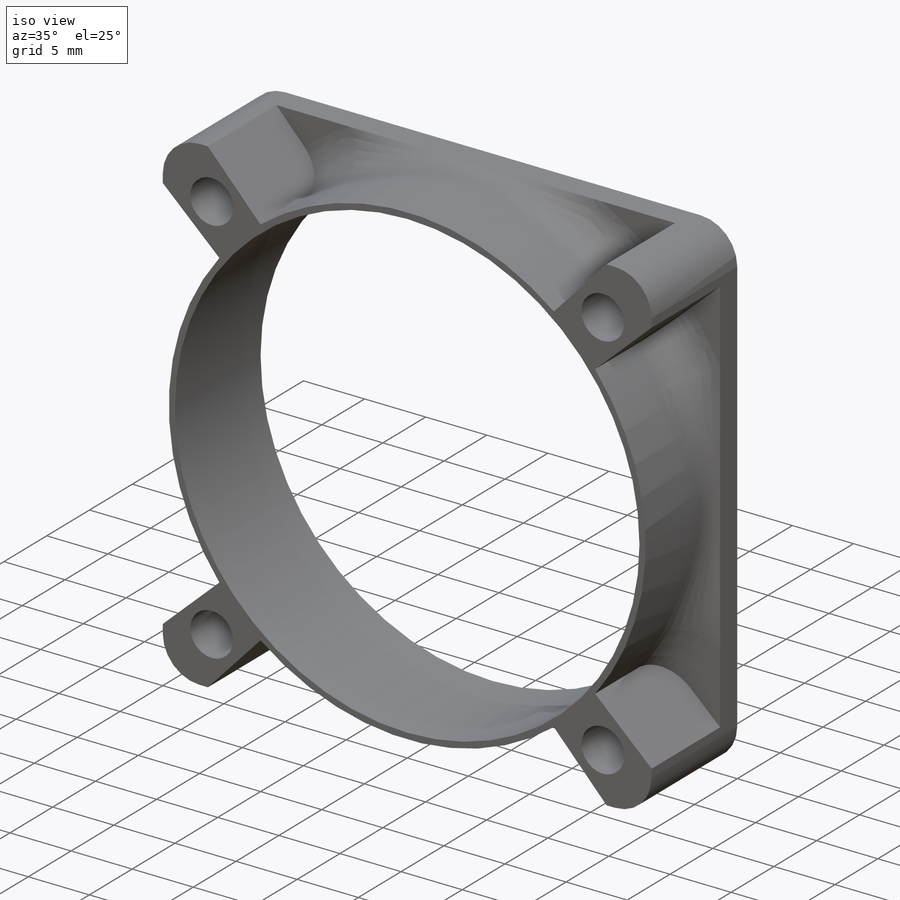
[diagram: iso view]
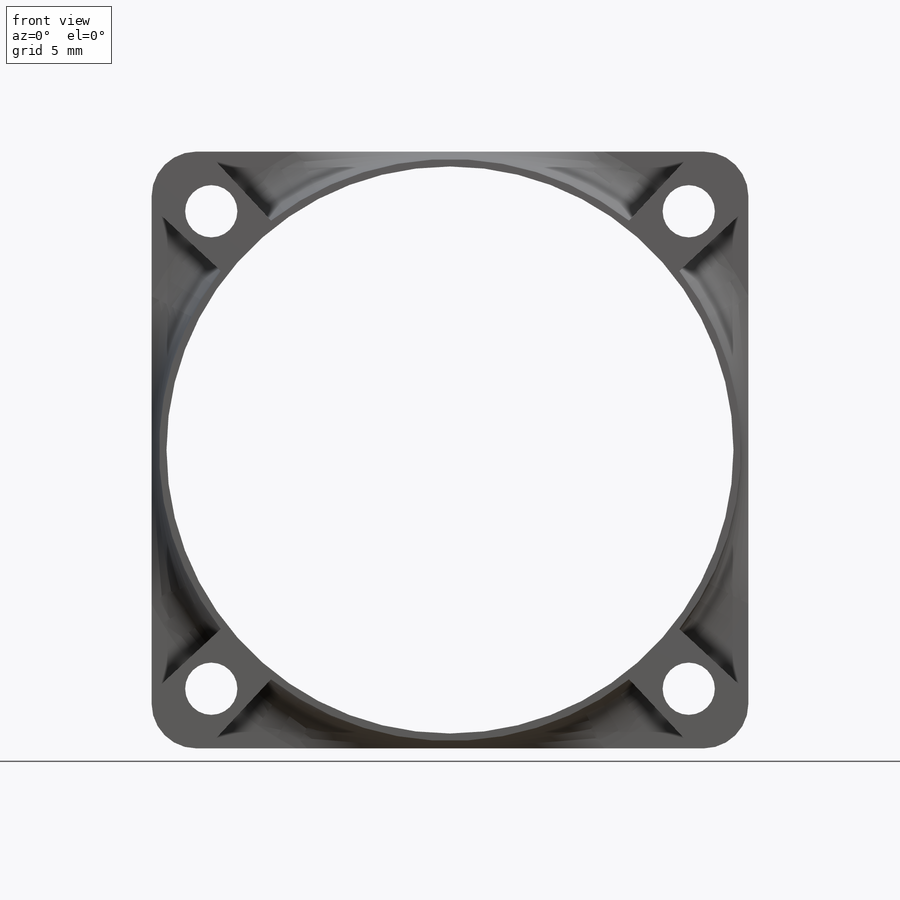
[diagram: front view]
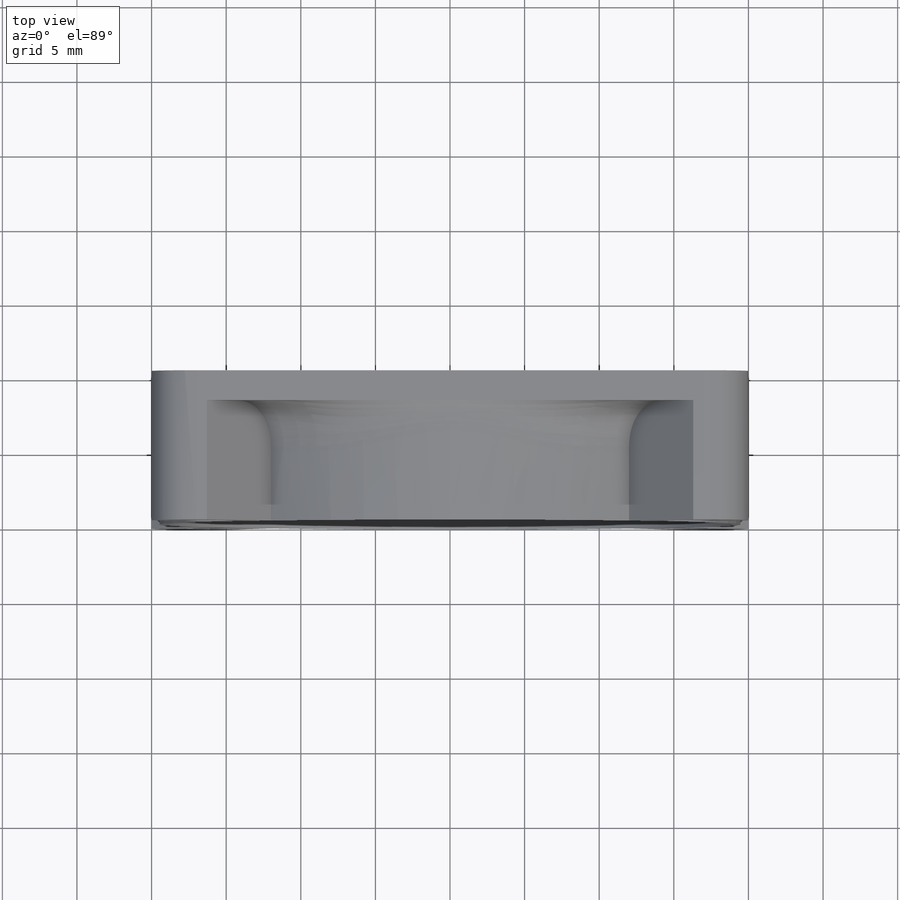
[diagram: top view]
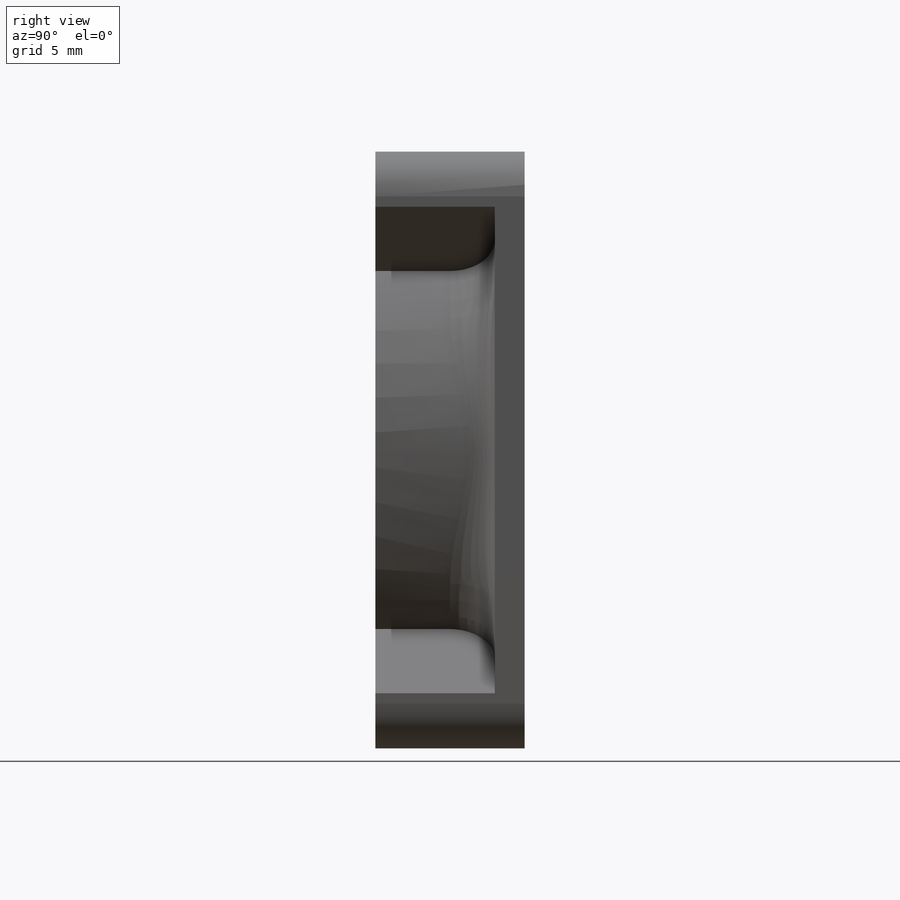
[diagram: right view]
SOLIDWORKS PART (.sldprt)
format: sldprt  version: not decoded by parser v0  size: 321,536 bytes
history: native  units: mm
features: plane x3, sketch x3, fillet x2, cut_extrude x2, material x1, extrude x1 (+9 scaffold rows collapsed)
feature tree (21):
  scaffold x9  (default folders/planes/origin — collapsed)
  material  "Matériau <non spécifié>"
  plane  "Plan de face"
  plane  "Plan de dessus"
  plane  "Plan de droite"
  sketch  "Esquisse1"  dims[c1.D1=~3.347287mm c1.D2=~3.108195mm c2.D1=40.0mm c2.D2=40.0mm c2.D3=20.0mm c2.D4=20.0mm]
  extrude  "Boss.-Extru.1"  Depth=10mm
  fillet  "Congé1"  Radius=3mm
  sketch  "Esquisse2"  dims[c1.D1=38.0mm c1.D2=~8.560309mm c1.D10=3.5mm c1.D11=3.5mm c1.D12=3.5mm c1.D13=3.5mm c2.D2=32.0mm c2.D3=4.0mm c2.D4=32.0mm c2.D5=32.0mm c2.D6=32.0mm c2.D7=4.0mm c2.D8=4.0mm c2.D9=4.0mm]
  cut_extrude  "Enlèv. mat.-Extru.1"  Depth=10mm
  sketch  "Esquisse3"  dims[c1.D1=19.5mm c1.D2=19.5mm c1.D3=19.5mm c1.D4=19.5mm c1.D5=3.5mm c1.D13=3.5mm c2.D1=20.0mm c2.D5=4.0mm c2.D6=4.0mm c2.D7=4.0mm c2.D8=4.0mm c2.D9=4.0mm c2.D10=4.0mm c2.D11=4.0mm c2.D12=4.0mm c2.D13=2.5mm c2.D14=2.5mm c2.D15=2.5mm c2.D16=2.5mm c2.D17=2.5mm c2.D18=2.5mm c2.D19=2.5mm c2.D20=2.5mm c2.D21=~32.450145mm]
  cut_extrude  "Enlèv. mat.-Extru.2"  Depth=8mm
  fillet  "Congé2"  Radius=3mm
decode coverage: 8 of 8 modeling features carry decoded parameters
note: ~ marks probable driven/reference dimensions
note: suppression state not decoded; provenance and decode notes live in map.json
